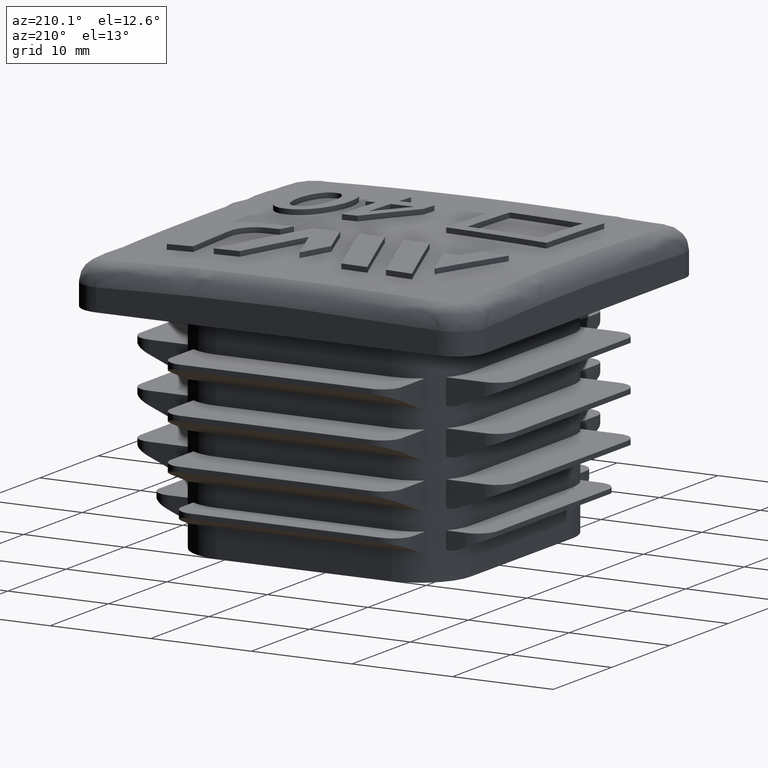
[diagram: clean part render]
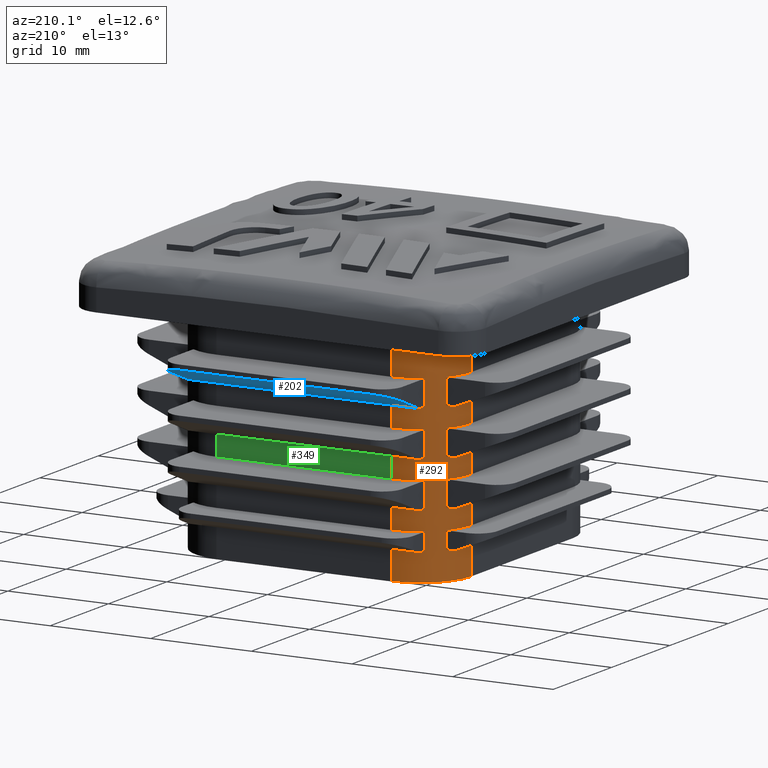
[diagram: same view with three faces highlighted in distinct colors, each labeled with its STEP entity id]
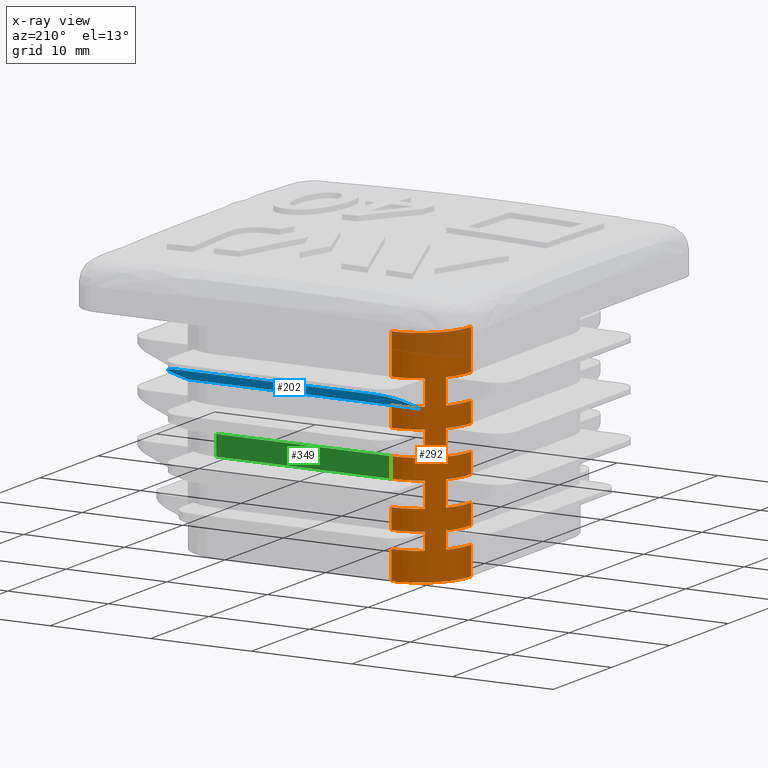
[diagram: x-ray of the same camera — body ghosted, the three highlighted faces saturated]
A machine part, auxiliary view with three faces highlighted in distinct colors.
The next image is the same camera in x-ray (body ghosted, the three faces saturated) — at least one of them is partly hidden behind the body in this view.
Their STEP definitions:

[orange] entity #292 — the highlighted cylindrical surface (partial cylindrical patch) has radius 5 mm, axis along (0, 0, -1).
#292 = ADVANCED_FACE( '', ( #802 ), #803, .T. );
#802 = FACE_OUTER_BOUND( '', #3313, .T. );
#803 = CYLINDRICAL_SURFACE( '', #3314, 5.00000000000000 );
#3313 = EDGE_LOOP( '', ( #5109, #5110, #5111, #5112, #5113, #5114, #5115, #5116, #5117, #5118, #5119, #5120, #5121, #5122, #5123, #5124, #5125, #5126, #5127, #5128, #5129, #5130, #5131, #5132, #5133, #5134, #5135, #5136, #5137, #5138, #5139, #5140, #5141, #5142, #5143, #5144 ) );
#3314 = AXIS2_PLACEMENT_3D( '', #5145, #5146, #5147 );
#5109 = ORIENTED_EDGE( '', *, *, #6296, .F. );
#5110 = ORIENTED_EDGE( '', *, *, #6134, .T. );
#5111 = ORIENTED_EDGE( '', *, *, #6148, .T. );
#5112 = ORIENTED_EDGE( '', *, *, #6124, .T. );
#5113 = ORIENTED_EDGE( '', *, *, #6297, .F. );
#5114 = ORIENTED_EDGE( '', *, *, #5792, .T. );
#5115 = ORIENTED_EDGE( '', *, *, #6298, .T. );
#5116 = ORIENTED_EDGE( '', *, *, #6027, .T. );
#5117 = ORIENTED_EDGE( '', *, *, #6042, .F. );
#5118 = ORIENTED_EDGE( '', *, *, #6032, .T. );
#5119 = ORIENTED_EDGE( '', *, *, #6299, .T. );
#5120 = ORIENTED_EDGE( '', *, *, #5997, .T. );
#5121 = ORIENTED_EDGE( '', *, *, #6016, .F. );
#5122 = ORIENTED_EDGE( '', *, *, #6011, .T. );
#5123 = ORIENTED_EDGE( '', *, *, #6300, .T. );
#5124 = ORIENTED_EDGE( '', *, *, #5971, .T. );
#5125 = ORIENTED_EDGE( '', *, *, #5990, .F. );
#5126 = ORIENTED_EDGE( '', *, *, #5985, .T. );
#5127 = ORIENTED_EDGE( '', *, *, #6301, .T. );
#5128 = ORIENTED_EDGE( '', *, *, #5945, .T. );
#5129 = ORIENTED_EDGE( '', *, *, #5964, .F. );
#5130 = ORIENTED_EDGE( '', *, *, #5959, .T. );
#5131 = ORIENTED_EDGE( '', *, *, #6302, .T. );
#5132 = ORIENTED_EDGE( '', *, *, #5746, .F. );
#5133 = ORIENTED_EDGE( '', *, *, #6303, .F. );
#5134 = ORIENTED_EDGE( '', *, *, #6061, .T. );
#5135 = ORIENTED_EDGE( '', *, *, #6070, .T. );
#5136 = ORIENTED_EDGE( '', *, *, #6046, .T. );
#5137 = ORIENTED_EDGE( '', *, *, #6304, .F. );
#5138 = ORIENTED_EDGE( '', *, *, #6087, .T. );
#5139 = ORIENTED_EDGE( '', *, *, #6096, .T. );
#5140 = ORIENTED_EDGE( '', *, *, #6072, .T. );
#5141 = ORIENTED_EDGE( '', *, *, #6305, .F. );
#5142 = ORIENTED_EDGE( '', *, *, #6113, .T. );
#5143 = ORIENTED_EDGE( '', *, *, #6122, .T. );
#5144 = ORIENTED_EDGE( '', *, *, #6098, .T. );
#5145 = CARTESIAN_POINT( '', ( -8.70000000000000, 8.70000000000000, 0.000000000000000 ) );
#5146 = DIRECTION( '', ( 0.000000000000000, 0.000000000000000, -1.00000000000000 ) );
#5147 = DIRECTION( '', ( 0.000000000000000, -1.00000000000000, 0.000000000000000 ) );
#5746 = EDGE_CURVE( '', #6564, #6551, #6566, .T. );
#5792 = EDGE_CURVE( '', #6637, #6635, #6638, .T. );
#5945 = EDGE_CURVE( '', #6891, #6892, #6893, .F. );
#5959 = EDGE_CURVE( '', #6917, #6915, #6918, .F. );
#5964 = EDGE_CURVE( '', #6917, #6892, #6925, .F. );
#5971 = EDGE_CURVE( '', #6935, #6936, #6937, .F. );
#5985 = EDGE_CURVE( '', #6961, #6959, #6962, .F. );
#5990 = EDGE_CURVE( '', #6961, #6936, #6969, .F. );
#5997 = EDGE_CURVE( '', #6979, #6980, #6981, .F. );
#6011 = EDGE_CURVE( '', #7005, #7003, #7006, .F. );
#6016 = EDGE_CURVE( '', #7005, #6980, #7013, .F. );
#6027 = EDGE_CURVE( '', #7031, #7032, #7033, .F. );
#6032 = EDGE_CURVE( '', #7042, #7040, #7043, .F. );
#6042 = EDGE_CURVE( '', #7042, #7032, #7057, .F. );
#6046 = EDGE_CURVE( '', #7061, #7062, #7063, .F. );
#6061 = EDGE_CURVE( '', #7088, #7089, #7090, .F. );
#6070 = EDGE_CURVE( '', #7089, #7061, #7103, .F. );
#6072 = EDGE_CURVE( '', #7105, #7106, #7107, .F. );
#6087 = EDGE_CURVE( '', #7132, #7133, #7134, .F. );
#6096 = EDGE_CURVE( '', #7133, #7105, #7147, .F. );
#6098 = EDGE_CURVE( '', #7149, #7150, #7151, .F. );
#6113 = EDGE_CURVE( '', #7176, #7177, #7178, .F. );
#6122 = EDGE_CURVE( '', #7177, #7149, #7191, .F. );
#6124 = EDGE_CURVE( '', #7193, #7194, #7195, .F. );
#6134 = EDGE_CURVE( '', #7213, #7214, #7215, .F. );
#6148 = EDGE_CURVE( '', #7214, #7193, #7235, .F. );
#6296 = EDGE_CURVE( '', #7213, #7150, #7482, .T. );
#6297 = EDGE_CURVE( '', #6637, #7194, #7483, .T. );
#6298 = EDGE_CURVE( '', #6635, #7031, #7484, .T. );
#6299 = EDGE_CURVE( '', #7040, #6979, #7485, .T. );
#6300 = EDGE_CURVE( '', #7003, #6935, #7486, .T. );
#6301 = EDGE_CURVE( '', #6959, #6891, #7487, .T. );
#6302 = EDGE_CURVE( '', #6915, #6551, #7488, .T. );
#6303 = EDGE_CURVE( '', #7088, #6564, #7489, .T. );
#6304 = EDGE_CURVE( '', #7132, #7062, #7490, .T. );
#6305 = EDGE_CURVE( '', #7176, #7106, #7491, .T. );
#6551 = VERTEX_POINT( '', #8572 );
#6564 = VERTEX_POINT( '', #8588 );
#6566 = CIRCLE( '', #8591, 5.00000000000000 );
#6635 = VERTEX_POINT( '', #8879 );
#6637 = VERTEX_POINT( '', #8882 );
#6638 = CIRCLE( '', #8883, 5.00000000000000 );
#6891 = VERTEX_POINT( '', #9620 );
#6892 = VERTEX_POINT( '', #9621 );
#6893 = CIRCLE( '', #9622, 5.00000000000000 );
#6915 = VERTEX_POINT( '', #9653 );
#6917 = VERTEX_POINT( '', #9656 );
#6918 = CIRCLE( '', #9657, 5.00000000000000 );
#6925 = LINE( '', #9666, #9667 );
#6935 = VERTEX_POINT( '', #9682 );
#6936 = VERTEX_POINT( '', #9683 );
#6937 = CIRCLE( '', #9684, 5.00000000000000 );
#6959 = VERTEX_POINT( '', #9715 );
#6961 = VERTEX_POINT( '', #9718 );
#6962 = CIRCLE( '', #9719, 5.00000000000000 );
#6969 = LINE( '', #9728, #9729 );
#6979 = VERTEX_POINT( '', #9744 );
#6980 = VERTEX_POINT( '', #9745 );
#6981 = CIRCLE( '', #9746, 5.00000000000000 );
#7003 = VERTEX_POINT( '', #9777 );
#7005 = VERTEX_POINT( '', #9780 );
#7006 = CIRCLE( '', #9781, 5.00000000000000 );
#7013 = LINE( '', #9790, #9791 );
#7031 = VERTEX_POINT( '', #9818 );
#7032 = VERTEX_POINT( '', #9819 );
#7033 = CIRCLE( '', #9820, 5.00000000000000 );
#7040 = VERTEX_POINT( '', #9829 );
#7042 = VERTEX_POINT( '', #9832 );
#7043 = CIRCLE( '', #9833, 5.00000000000000 );
#7057 = LINE( '', #9852, #9853 );
#7061 = VERTEX_POINT( '', #9860 );
#7062 = VERTEX_POINT( '', #9861 );
#7063 = CIRCLE( '', #9862, 5.00000000000000 );
#7088 = VERTEX_POINT( '', #9898 );
#7089 = VERTEX_POINT( '', #9899 );
#7090 = CIRCLE( '', #9900, 5.00000000000000 );
#7103 = LINE( '', #9918, #9919 );
#7105 = VERTEX_POINT( '', #9922 );
#7106 = VERTEX_POINT( '', #9923 );
#7107 = CIRCLE( '', #9924, 5.00000000000000 );
#7132 = VERTEX_POINT( '', #9960 );
#7133 = VERTEX_POINT( '', #9961 );
#7134 = CIRCLE( '', #9962, 5.00000000000000 );
#7147 = LINE( '', #9980, #9981 );
#7149 = VERTEX_POINT( '', #9984 );
#7150 = VERTEX_POINT( '', #9985 );
#7151 = CIRCLE( '', #9986, 5.00000000000000 );
#7176 = VERTEX_POINT( '', #10022 );
#7177 = VERTEX_POINT( '', #10023 );
#7178 = CIRCLE( '', #10024, 5.00000000000000 );
#7191 = LINE( '', #10042, #10043 );
#7193 = VERTEX_POINT( '', #10046 );
#7194 = VERTEX_POINT( '', #10047 );
#7195 = CIRCLE( '', #10048, 5.00000000000000 );
#7213 = VERTEX_POINT( '', #10074 );
#7214 = VERTEX_POINT( '', #10075 );
#7215 = CIRCLE( '', #10076, 5.00000000000000 );
#7235 = LINE( '', #10104, #10105 );
#7482 = LINE( '', #10589, #10590 );
#7483 = LINE( '', #10591, #10592 );
#7484 = LINE( '', #10593, #10594 );
#7485 = LINE( '', #10595, #10596 );
#7486 = LINE( '', #10597, #10598 );
#7487 = LINE( '', #10599, #10600 );
#7488 = LINE( '', #10601, #10602 );
#7489 = LINE( '', #10603, #10604 );
#7490 = LINE( '', #10605, #10606 );
#7491 = LINE( '', #10607, #10608 );
#8572 = CARTESIAN_POINT( '', ( -13.7000000000000, 8.70000000000001, 22.0000000000000 ) );
#8588 = CARTESIAN_POINT( '', ( -8.70000000000000, 13.7000000000000, 22.0000000000000 ) );
#8591 = AXIS2_PLACEMENT_3D( '', #10764, #10765, #10766 );
#8879 = CARTESIAN_POINT( '', ( -13.7000000000000, 8.70000000000001, 0.000000000000000 ) );
#8882 = CARTESIAN_POINT( '', ( -8.70000000000000, 13.7000000000000, 0.000000000000000 ) );
#8883 = AXIS2_PLACEMENT_3D( '', #10837, #10838, #10839 );
#9620 = CARTESIAN_POINT( '', ( -13.7000000000000, 8.70000000000001, 15.5000000000000 ) );
#9621 = CARTESIAN_POINT( '', ( -12.8424630354416, 11.5000000000000, 15.5000000000000 ) );
#9622 = AXIS2_PLACEMENT_3D( '', #11053, #11054, #11055 );
#9653 = CARTESIAN_POINT( '', ( -13.7000000000000, 8.70000000000001, 18.0000000000000 ) );
#9656 = CARTESIAN_POINT( '', ( -12.8424630354416, 11.5000000000000, 18.0000000000000 ) );
#9657 = AXIS2_PLACEMENT_3D( '', #11075, #11076, #11077 );
#9666 = CARTESIAN_POINT( '', ( -12.8424630354416, 11.5000000000000, 0.000000000000000 ) );
#9667 = VECTOR( '', #11086, 1000.00000000000 );
#9682 = CARTESIAN_POINT( '', ( -13.7000000000000, 8.70000000000001, 11.0000000000000 ) );
#9683 = CARTESIAN_POINT( '', ( -12.8424630354416, 11.5000000000000, 11.0000000000000 ) );
#9684 = AXIS2_PLACEMENT_3D( '', #11095, #11096, #11097 );
#9715 = CARTESIAN_POINT( '', ( -13.7000000000000, 8.70000000000001, 13.5000000000000 ) );
#9718 = CARTESIAN_POINT( '', ( -12.8424630354416, 11.5000000000000, 13.5000000000000 ) );
#9719 = AXIS2_PLACEMENT_3D( '', #11117, #11118, #11119 );
#9728 = CARTESIAN_POINT( '', ( -12.8424630354416, 11.5000000000000, 0.000000000000000 ) );
#9729 = VECTOR( '', #11128, 1000.00000000000 );
#9744 = CARTESIAN_POINT( '', ( -13.7000000000000, 8.70000000000001, 6.50000000000001 ) );
#9745 = CARTESIAN_POINT( '', ( -12.8424630354416, 11.5000000000000, 6.50000000000000 ) );
#9746 = AXIS2_PLACEMENT_3D( '', #11137, #11138, #11139 );
#9777 = CARTESIAN_POINT( '', ( -13.7000000000000, 8.70000000000001, 9.00000000000000 ) );
#9780 = CARTESIAN_POINT( '', ( -12.8424630354416, 11.5000000000000, 9.00000000000000 ) );
#9781 = AXIS2_PLACEMENT_3D( '', #11159, #11160, #11161 );
#9790 = CARTESIAN_POINT( '', ( -12.8424630354416, 11.5000000000000, 0.000000000000000 ) );
#9791 = VECTOR( '', #11170, 1000.00000000000 );
#9818 = CARTESIAN_POINT( '', ( -13.7000000000000, 8.70000000000001, 2.80000000000001 ) );
#9819 = CARTESIAN_POINT( '', ( -12.8424630354416, 11.5000000000000, 2.80000000000000 ) );
#9820 = AXIS2_PLACEMENT_3D( '', #11183, #11184, #11185 );
#9829 = CARTESIAN_POINT( '', ( -13.7000000000000, 8.70000000000001, 4.49999999999998 ) );
#9832 = CARTESIAN_POINT( '', ( -12.8424630354416, 11.5000000000000, 4.49999999999998 ) );
#9833 = AXIS2_PLACEMENT_3D( '', #11192, #11193, #11194 );
#9852 = CARTESIAN_POINT( '', ( -12.8424630354416, 11.5000000000000, 0.000000000000000 ) );
#9853 = VECTOR( '', #11212, 1000.00000000000 );
#9860 = CARTESIAN_POINT( '', ( -11.5000000000000, 12.8424630354416, 15.5000000000000 ) );
#9861 = CARTESIAN_POINT( '', ( -8.69999999999999, 13.7000000000000, 15.5000000000000 ) );
#9862 = AXIS2_PLACEMENT_3D( '', #11216, #11217, #11218 );
#9898 = CARTESIAN_POINT( '', ( -8.70000000000000, 13.7000000000000, 18.0000000000000 ) );
#9899 = CARTESIAN_POINT( '', ( -11.5000000000000, 12.8424630354416, 18.0000000000000 ) );
#9900 = AXIS2_PLACEMENT_3D( '', #11239, #11240, #11241 );
#9918 = CARTESIAN_POINT( '', ( -11.5000000000000, 12.8424630354416, 0.000000000000000 ) );
#9919 = VECTOR( '', #11256, 1000.00000000000 );
#9922 = CARTESIAN_POINT( '', ( -11.5000000000000, 12.8424630354416, 11.0000000000000 ) );
#9923 = CARTESIAN_POINT( '', ( -8.69999999999999, 13.7000000000000, 11.0000000000000 ) );
#9924 = AXIS2_PLACEMENT_3D( '', #11258, #11259, #11260 );
#9960 = CARTESIAN_POINT( '', ( -8.70000000000000, 13.7000000000000, 13.5000000000000 ) );
#9961 = CARTESIAN_POINT( '', ( -11.5000000000000, 12.8424630354416, 13.5000000000000 ) );
#9962 = AXIS2_PLACEMENT_3D( '', #11281, #11282, #11283 );
#9980 = CARTESIAN_POINT( '', ( -11.5000000000000, 12.8424630354416, 0.000000000000000 ) );
#9981 = VECTOR( '', #11298, 1000.00000000000 );
#9984 = CARTESIAN_POINT( '', ( -11.5000000000000, 12.8424630354416, 6.50000000000000 ) );
#9985 = CARTESIAN_POINT( '', ( -8.69999999999999, 13.7000000000000, 6.50000000000002 ) );
#9986 = AXIS2_PLACEMENT_3D( '', #11300, #11301, #11302 );
#10022 = CARTESIAN_POINT( '', ( -8.70000000000000, 13.7000000000000, 9.00000000000000 ) );
#10023 = CARTESIAN_POINT( '', ( -11.5000000000000, 12.8424630354416, 9.00000000000000 ) );
#10024 = AXIS2_PLACEMENT_3D( '', #11323, #11324, #11325 );
#10042 = CARTESIAN_POINT( '', ( -11.5000000000000, 12.8424630354416, 0.000000000000000 ) );
#10043 = VECTOR( '', #11340, 1000.00000000000 );
#10046 = CARTESIAN_POINT( '', ( -11.5000000000000, 12.8424630354416, 2.80000000000000 ) );
#10047 = CARTESIAN_POINT( '', ( -8.69999999999999, 13.7000000000000, 2.80000000000000 ) );
#10048 = AXIS2_PLACEMENT_3D( '', #11342, #11343, #11344 );
#10074 = CARTESIAN_POINT( '', ( -8.69999999999999, 13.7000000000000, 4.49999999999998 ) );
#10075 = CARTESIAN_POINT( '', ( -11.5000000000000, 12.8424630354416, 4.49999999999998 ) );
#10076 = AXIS2_PLACEMENT_3D( '', #11356, #11357, #11358 );
#10104 = CARTESIAN_POINT( '', ( -11.5000000000000, 12.8424630354416, 0.000000000000000 ) );
#10105 = VECTOR( '', #11382, 1000.00000000000 );
#10589 = CARTESIAN_POINT( '', ( -8.70000000000000, 13.7000000000000, 0.000000000000000 ) );
#10590 = VECTOR( '', #11574, 1000.00000000000 );
#10591 = CARTESIAN_POINT( '', ( -8.70000000000000, 13.7000000000000, 0.000000000000000 ) );
#10592 = VECTOR( '', #11575, 1000.00000000000 );
#10593 = CARTESIAN_POINT( '', ( -13.7000000000000, 8.70000000000001, 0.000000000000000 ) );
#10594 = VECTOR( '', #11576, 1000.00000000000 );
#10595 = CARTESIAN_POINT( '', ( -13.7000000000000, 8.70000000000001, 0.000000000000000 ) );
#10596 = VECTOR( '', #11577, 1000.00000000000 );
#10597 = CARTESIAN_POINT( '', ( -13.7000000000000, 8.70000000000001, 0.000000000000000 ) );
#10598 = VECTOR( '', #11578, 1000.00000000000 );
#10599 = CARTESIAN_POINT( '', ( -13.7000000000000, 8.70000000000001, 0.000000000000000 ) );
#10600 = VECTOR( '', #11579, 1000.00000000000 );
#10601 = CARTESIAN_POINT( '', ( -13.7000000000000, 8.70000000000001, 0.000000000000000 ) );
#10602 = VECTOR( '', #11580, 1000.00000000000 );
#10603 = CARTESIAN_POINT( '', ( -8.70000000000000, 13.7000000000000, 0.000000000000000 ) );
#10604 = VECTOR( '', #11581, 1000.00000000000 );
#10605 = CARTESIAN_POINT( '', ( -8.70000000000000, 13.7000000000000, 0.000000000000000 ) );
#10606 = VECTOR( '', #11582, 1000.00000000000 );
#10607 = CARTESIAN_POINT( '', ( -8.70000000000000, 13.7000000000000, 0.000000000000000 ) );
#10608 = VECTOR( '', #11583, 1000.00000000000 );
#10764 = CARTESIAN_POINT( '', ( -8.70000000000000, 8.70000000000000, 22.0000000000000 ) );
#10765 = DIRECTION( '', ( 0.000000000000000, 0.000000000000000, 1.00000000000000 ) );
#10766 = DIRECTION( '', ( 3.46944695195362E-016, 1.00000000000000, 0.000000000000000 ) );
#10837 = CARTESIAN_POINT( '', ( -8.70000000000000, 8.70000000000000, 0.000000000000000 ) );
#10838 = DIRECTION( '', ( 0.000000000000000, 0.000000000000000, 1.00000000000000 ) );
#10839 = DIRECTION( '', ( 3.46944695195362E-016, 1.00000000000000, 0.000000000000000 ) );
#11053 = CARTESIAN_POINT( '', ( -8.70000000000000, 8.70000000000000, 15.5000000000000 ) );
#11054 = DIRECTION( '', ( 5.55111512312578E-017, 6.12303176911188E-017, 1.00000000000000 ) );
#11055 = DIRECTION( '', ( 0.000000000000000, -1.00000000000000, 6.12303176911188E-017 ) );
#11075 = CARTESIAN_POINT( '', ( -8.70000000000000, 8.70000000000000, 18.0000000000000 ) );
#11076 = DIRECTION( '', ( -5.55111512312578E-017, -6.12303176911188E-017, -1.00000000000000 ) );
#11077 = DIRECTION( '', ( 0.000000000000000, 1.00000000000000, -6.12303176911188E-017 ) );
#11086 = DIRECTION( '', ( 0.000000000000000, 0.000000000000000, 1.00000000000000 ) );
#11095 = CARTESIAN_POINT( '', ( -8.70000000000000, 8.70000000000000, 11.0000000000000 ) );
#11096 = DIRECTION( '', ( 5.55111512312578E-017, 6.12303176911188E-017, 1.00000000000000 ) );
#11097 = DIRECTION( '', ( 0.000000000000000, -1.00000000000000, 6.12303176911188E-017 ) );
#11117 = CARTESIAN_POINT( '', ( -8.70000000000000, 8.70000000000000, 13.5000000000000 ) );
#11118 = DIRECTION( '', ( -5.55111512312578E-017, -6.12303176911188E-017, -1.00000000000000 ) );
#11119 = DIRECTION( '', ( 0.000000000000000, 1.00000000000000, -6.12303176911188E-017 ) );
#11128 = DIRECTION( '', ( 0.000000000000000, 0.000000000000000, 1.00000000000000 ) );
#11137 = CARTESIAN_POINT( '', ( -8.70000000000000, 8.70000000000000, 6.50000000000000 ) );
#11138 = DIRECTION( '', ( 5.55111512312578E-017, 6.12303176911188E-017, 1.00000000000000 ) );
#11139 = DIRECTION( '', ( 0.000000000000000, -1.00000000000000, 6.12303176911188E-017 ) );
#11159 = CARTESIAN_POINT( '', ( -8.70000000000000, 8.70000000000000, 9.00000000000000 ) );
#11160 = DIRECTION( '', ( -5.55111512312578E-017, -6.12303176911188E-017, -1.00000000000000 ) );
#11161 = DIRECTION( '', ( 0.000000000000000, 1.00000000000000, -6.12303176911188E-017 ) );
#11170 = DIRECTION( '', ( 0.000000000000000, 0.000000000000000, 1.00000000000000 ) );
#11183 = CARTESIAN_POINT( '', ( -8.70000000000000, 8.70000000000000, 2.80000000000000 ) );
#11184 = DIRECTION( '', ( 5.55111512312578E-017, 6.12303176911188E-017, 1.00000000000000 ) );
#11185 = DIRECTION( '', ( 0.000000000000000, -1.00000000000000, 6.12303176911188E-017 ) );
#11192 = CARTESIAN_POINT( '', ( -8.70000000000000, 8.70000000000000, 4.49999999999998 ) );
#11193 = DIRECTION( '', ( -5.55111512312578E-017, -6.12303176911188E-017, -1.00000000000000 ) );
#11194 = DIRECTION( '', ( 0.000000000000000, 1.00000000000000, -6.12303176911188E-017 ) );
#11212 = DIRECTION( '', ( 0.000000000000000, 0.000000000000000, 1.00000000000000 ) );
#11216 = CARTESIAN_POINT( '', ( -8.70000000000000, 8.70000000000000, 15.5000000000000 ) );
#11217 = DIRECTION( '', ( -8.96806269338378E-032, 5.71916645986104E-018, 1.00000000000000 ) );
#11218 = DIRECTION( '', ( 0.000000000000000, -1.00000000000000, 5.71916645986104E-018 ) );
#11239 = CARTESIAN_POINT( '', ( -8.70000000000000, 8.70000000000000, 18.0000000000000 ) );
#11240 = DIRECTION( '', ( 8.96806269338378E-032, -5.71916645986104E-018, -1.00000000000000 ) );
#11241 = DIRECTION( '', ( 0.000000000000000, 1.00000000000000, -5.71916645986104E-018 ) );
#11256 = DIRECTION( '', ( 0.000000000000000, 0.000000000000000, 1.00000000000000 ) );
#11258 = CARTESIAN_POINT( '', ( -8.70000000000000, 8.70000000000000, 11.0000000000000 ) );
#11259 = DIRECTION( '', ( -8.96806269338378E-032, 5.71916645986104E-018, 1.00000000000000 ) );
#11260 = DIRECTION( '', ( 0.000000000000000, -1.00000000000000, 5.71916645986104E-018 ) );
#11281 = CARTESIAN_POINT( '', ( -8.70000000000000, 8.70000000000000, 13.5000000000000 ) );
#11282 = DIRECTION( '', ( 8.96806269338378E-032, -5.71916645986104E-018, -1.00000000000000 ) );
#11283 = DIRECTION( '', ( 0.000000000000000, 1.00000000000000, -5.71916645986104E-018 ) );
#11298 = DIRECTION( '', ( 0.000000000000000, 0.000000000000000, 1.00000000000000 ) );
#11300 = CARTESIAN_POINT( '', ( -8.70000000000000, 8.70000000000000, 6.50000000000000 ) );
#11301 = DIRECTION( '', ( -8.96806269338378E-032, 5.71916645986104E-018, 1.00000000000000 ) );
#11302 = DIRECTION( '', ( 0.000000000000000, -1.00000000000000, 5.71916645986104E-018 ) );
#11323 = CARTESIAN_POINT( '', ( -8.70000000000000, 8.70000000000000, 9.00000000000000 ) );
#11324 = DIRECTION( '', ( 8.96806269338378E-032, -5.71916645986104E-018, -1.00000000000000 ) );
#11325 = DIRECTION( '', ( 0.000000000000000, 1.00000000000000, -5.71916645986104E-018 ) );
#11340 = DIRECTION( '', ( 0.000000000000000, 0.000000000000000, 1.00000000000000 ) );
#11342 = CARTESIAN_POINT( '', ( -8.70000000000000, 8.70000000000000, 2.80000000000000 ) );
#11343 = DIRECTION( '', ( -8.96806269338378E-032, 5.71916645986104E-018, 1.00000000000000 ) );
#11344 = DIRECTION( '', ( 0.000000000000000, -1.00000000000000, 5.71916645986104E-018 ) );
#11356 = CARTESIAN_POINT( '', ( -8.70000000000000, 8.70000000000000, 4.49999999999998 ) );
#11357 = DIRECTION( '', ( 8.96806269338378E-032, -5.71916645986104E-018, -1.00000000000000 ) );
#11358 = DIRECTION( '', ( 0.000000000000000, 1.00000000000000, -5.71916645986104E-018 ) );
#11382 = DIRECTION( '', ( 0.000000000000000, 0.000000000000000, 1.00000000000000 ) );
#11574 = DIRECTION( '', ( 0.000000000000000, 0.000000000000000, 1.00000000000000 ) );
#11575 = DIRECTION( '', ( 0.000000000000000, 0.000000000000000, 1.00000000000000 ) );
#11576 = DIRECTION( '', ( 0.000000000000000, 0.000000000000000, 1.00000000000000 ) );
#11577 = DIRECTION( '', ( 0.000000000000000, 0.000000000000000, 1.00000000000000 ) );
#11578 = DIRECTION( '', ( 0.000000000000000, 0.000000000000000, 1.00000000000000 ) );
#11579 = DIRECTION( '', ( 0.000000000000000, 0.000000000000000, 1.00000000000000 ) );
#11580 = DIRECTION( '', ( 0.000000000000000, 0.000000000000000, 1.00000000000000 ) );
#11581 = DIRECTION( '', ( 0.000000000000000, 0.000000000000000, 1.00000000000000 ) );
#11582 = DIRECTION( '', ( 0.000000000000000, 0.000000000000000, 1.00000000000000 ) );
#11583 = DIRECTION( '', ( 0.000000000000000, 0.000000000000000, 1.00000000000000 ) );

[blue] entity #202 — the highlighted planar face has unit normal (-0, -0.3746, 0.9272).
#202 = ADVANCED_FACE( '', ( #621 ), #622, .F. );
#621 = FACE_OUTER_BOUND( '', #2208, .T. );
#622 = PLANE( '', #2209 );
#2208 = EDGE_LOOP( '', ( #4445, #4446, #4447, #4448, #4449, #4450, #4451, #4452 ) );
#2209 = AXIS2_PLACEMENT_3D( '', #4453, #4454, #4455 );
#4445 = ORIENTED_EDGE( '', *, *, #6052, .F. );
#4446 = ORIENTED_EDGE( '', *, *, #6053, .T. );
#4447 = ORIENTED_EDGE( '', *, *, #6054, .F. );
#4448 = ORIENTED_EDGE( '', *, *, #6050, .T. );
#4449 = ORIENTED_EDGE( '', *, *, #6055, .F. );
#4450 = ORIENTED_EDGE( '', *, *, #6048, .T. );
#4451 = ORIENTED_EDGE( '', *, *, #6056, .T. );
#4452 = ORIENTED_EDGE( '', *, *, #6057, .T. );
#4453 = CARTESIAN_POINT( '', ( 11.5000000000000, 13.7000000000000, 15.5000000000000 ) );
#4454 = DIRECTION( '', ( -2.29372807240442E-017, -0.374606593415912, 0.927183854566788 ) );
#4455 = DIRECTION( '', ( -5.67717619732006E-017, -0.927183854566787, -0.374606593415912 ) );
#6048 = EDGE_CURVE( '', #7062, #7064, #7066, .T. );
#6050 = EDGE_CURVE( '', #7070, #7067, #7071, .T. );
#6052 = EDGE_CURVE( '', #7073, #7074, #7075, .T. );
#6053 = EDGE_CURVE( '', #7073, #7076, #7077, .F. );
#6054 = EDGE_CURVE( '', #7070, #7076, #7078, .T. );
#6055 = EDGE_CURVE( '', #7062, #7067, #7079, .T. );
#6056 = EDGE_CURVE( '', #7064, #7080, #7081, .T. );
#6057 = EDGE_CURVE( '', #7080, #7074, #7082, .F. );
#7062 = VERTEX_POINT( '', #9861 );
#7064 = VERTEX_POINT( '', #9863 );
#7066 = LINE( '', #9866, #9867 );
#7067 = VERTEX_POINT( '', #9868 );
#7070 = VERTEX_POINT( '', #9871 );
#7071 = LINE( '', #9872, #9873 );
#7073 = VERTEX_POINT( '', #9876 );
#7074 = VERTEX_POINT( '', #9877 );
#7075 = LINE( '', #9878, #9879 );
#7076 = VERTEX_POINT( '', #9880 );
#7077 = ELLIPSE( '', #9881, 2.15706948535517, 2.00000000000000 );
#7078 = LINE( '', #9882, #9883 );
#7079 = LINE( '', #9884, #9885 );
#7080 = VERTEX_POINT( '', #9886 );
#7081 = LINE( '', #9887, #9888 );
#7082 = ELLIPSE( '', #9889, 2.15706948535517, 2.00000000000000 );
#9861 = CARTESIAN_POINT( '', ( -8.69999999999999, 13.7000000000000, 15.5000000000000 ) );
#9863 = CARTESIAN_POINT( '', ( -11.5000000000000, 13.7000000000000, 15.5000000000000 ) );
#9866 = CARTESIAN_POINT( '', ( 11.5000000000000, 13.7000000000000, 15.5000000000000 ) );
#9867 = VECTOR( '', #11220, 1000.00000000000 );
#9868 = CARTESIAN_POINT( '', ( 8.70000000000000, 13.7000000000000, 15.5000000000000 ) );
#9871 = CARTESIAN_POINT( '', ( 11.5000000000000, 13.7000000000000, 15.5000000000000 ) );
#9872 = CARTESIAN_POINT( '', ( 11.5000000000000, 13.7000000000000, 15.5000000000000 ) );
#9873 = VECTOR( '', #11224, 1000.00000000000 );
#9876 = CARTESIAN_POINT( '', ( 9.50000000000000, 18.7000000000000, 17.5201311291758 ) );
#9877 = CARTESIAN_POINT( '', ( -9.50000000000000, 18.7000000000000, 17.5201311291758 ) );
#9878 = CARTESIAN_POINT( '', ( 11.5000000000000, 18.7000000000000, 17.5201311291758 ) );
#9879 = VECTOR( '', #11226, 1000.00000000000 );
#9880 = CARTESIAN_POINT( '', ( 11.5000000000000, 16.7000000000000, 16.7120786775055 ) );
#9881 = AXIS2_PLACEMENT_3D( '', #11227, #11228, #11229 );
#9882 = CARTESIAN_POINT( '', ( 11.5000000000000, 13.7000000000000, 15.5000000000000 ) );
#9883 = VECTOR( '', #11230, 1000.00000000000 );
#9884 = CARTESIAN_POINT( '', ( 8.70000000000000, 13.7000000000000, 15.5000000000000 ) );
#9885 = VECTOR( '', #11231, 1000.00000000000 );
#9886 = CARTESIAN_POINT( '', ( -11.5000000000000, 16.7000000000000, 16.7120786775055 ) );
#9887 = CARTESIAN_POINT( '', ( -11.5000000000000, 13.7000000000000, 15.5000000000000 ) );
#9888 = VECTOR( '', #11232, 1000.00000000000 );
#9889 = AXIS2_PLACEMENT_3D( '', #11233, #11234, #11235 );
#11220 = DIRECTION( '', ( -1.00000000000000, 6.12303176911190E-017, -8.62816615085482E-032 ) );
#11224 = DIRECTION( '', ( -1.00000000000000, 6.12303176911190E-017, -8.62816615085482E-032 ) );
#11226 = DIRECTION( '', ( -1.00000000000000, 6.12303176911190E-017, -8.62816615085482E-032 ) );
#11227 = CARTESIAN_POINT( '', ( 9.50000000000000, 16.7000000000000, 16.7120786775055 ) );
#11228 = DIRECTION( '', ( -2.29372807240442E-017, -0.374606593415912, 0.927183854566787 ) );
#11229 = DIRECTION( '', ( -5.67717619732008E-017, -0.927183854566787, -0.374606593415912 ) );
#11230 = DIRECTION( '', ( 5.67717619732005E-017, 0.927183854566787, 0.374606593415912 ) );
#11231 = DIRECTION( '', ( 1.00000000000000, 0.000000000000000, 2.47386541634305E-017 ) );
#11232 = DIRECTION( '', ( 5.67717619732005E-017, 0.927183854566787, 0.374606593415912 ) );
#11233 = CARTESIAN_POINT( '', ( -9.50000000000000, 16.7000000000000, 16.7120786775055 ) );
#11234 = DIRECTION( '', ( -2.29372807240442E-017, -0.374606593415912, 0.927183854566787 ) );
#11235 = DIRECTION( '', ( 5.67717619732008E-017, 0.927183854566787, 0.374606593415912 ) );

[green] entity #349 — the highlighted planar face has unit normal (0, 1, 0).
#349 = ADVANCED_FACE( '', ( #916 ), #917, .T. );
#916 = FACE_OUTER_BOUND( '', #3427, .T. );
#917 = PLANE( '', #3428 );
#3427 = EDGE_LOOP( '', ( #5636, #5637, #5638, #5639 ) );
#3428 = AXIS2_PLACEMENT_3D( '', #5640, #5641, #5642 );
#5636 = ORIENTED_EDGE( '', *, *, #6320, .F. );
#5637 = ORIENTED_EDGE( '', *, *, #6114, .T. );
#5638 = ORIENTED_EDGE( '', *, *, #6305, .T. );
#5639 = ORIENTED_EDGE( '', *, *, #6083, .T. );
#5640 = CARTESIAN_POINT( '', ( 8.70000000000000, 13.7000000000000, 0.000000000000000 ) );
#5641 = DIRECTION( '', ( 0.000000000000000, 1.00000000000000, 0.000000000000000 ) );
#5642 = DIRECTION( '', ( 1.00000000000000, 0.000000000000000, 0.000000000000000 ) );
#6083 = EDGE_CURVE( '', #7106, #7111, #7126, .T. );
#6114 = EDGE_CURVE( '', #7179, #7176, #7180, .T. );
#6305 = EDGE_CURVE( '', #7176, #7106, #7491, .T. );
#6320 = EDGE_CURVE( '', #7179, #7111, #7506, .T. );
#7106 = VERTEX_POINT( '', #9923 );
#7111 = VERTEX_POINT( '', #9930 );
#7126 = LINE( '', #9950, #9951 );
#7176 = VERTEX_POINT( '', #10022 );
#7179 = VERTEX_POINT( '', #10025 );
#7180 = LINE( '', #10026, #10027 );
#7491 = LINE( '', #10607, #10608 );
#7506 = LINE( '', #10637, #10638 );
#9923 = CARTESIAN_POINT( '', ( -8.69999999999999, 13.7000000000000, 11.0000000000000 ) );
#9930 = CARTESIAN_POINT( '', ( 8.70000000000000, 13.7000000000000, 11.0000000000000 ) );
#9950 = CARTESIAN_POINT( '', ( 8.70000000000000, 13.7000000000000, 11.0000000000000 ) );
#9951 = VECTOR( '', #11277, 1000.00000000000 );
#10022 = CARTESIAN_POINT( '', ( -8.70000000000000, 13.7000000000000, 9.00000000000000 ) );
#10025 = CARTESIAN_POINT( '', ( 8.70000000000000, 13.7000000000000, 9.00000000000000 ) );
#10026 = CARTESIAN_POINT( '', ( 8.70000000000000, 13.7000000000000, 9.00000000000000 ) );
#10027 = VECTOR( '', #11326, 1000.00000000000 );
#10607 = CARTESIAN_POINT( '', ( -8.70000000000000, 13.7000000000000, 0.000000000000000 ) );
#10608 = VECTOR( '', #11583, 1000.00000000000 );
#10637 = CARTESIAN_POINT( '', ( 8.70000000000000, 13.7000000000000, 0.000000000000000 ) );
#10638 = VECTOR( '', #11598, 1000.00000000000 );
#11277 = DIRECTION( '', ( 1.00000000000000, 0.000000000000000, 2.47386541634305E-017 ) );
#11326 = DIRECTION( '', ( -1.00000000000000, 0.000000000000000, -8.96806269338378E-032 ) );
#11583 = DIRECTION( '', ( 0.000000000000000, 0.000000000000000, 1.00000000000000 ) );
#11598 = DIRECTION( '', ( 0.000000000000000, 0.000000000000000, 1.00000000000000 ) );